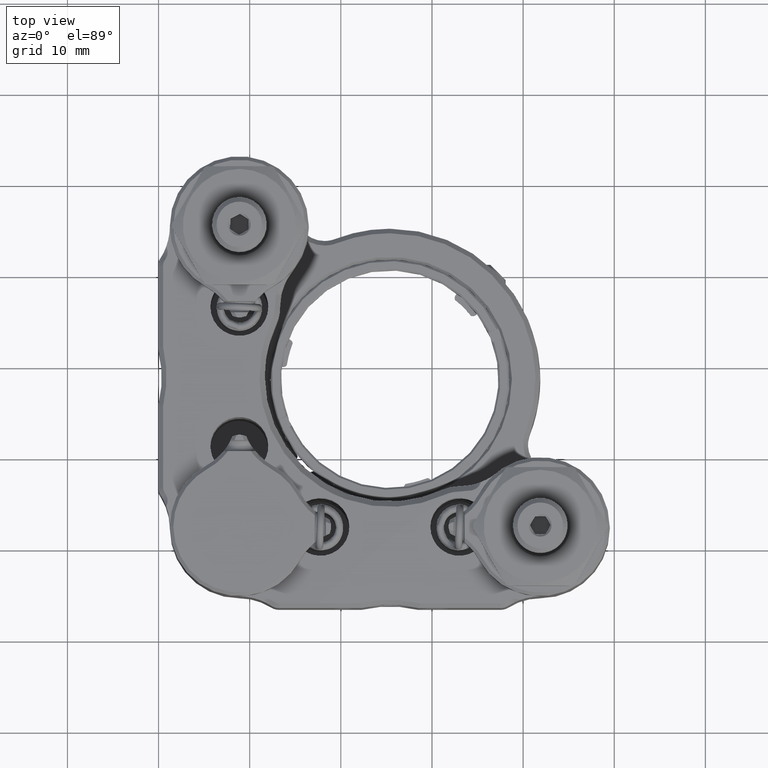
[diagram: clean part render]
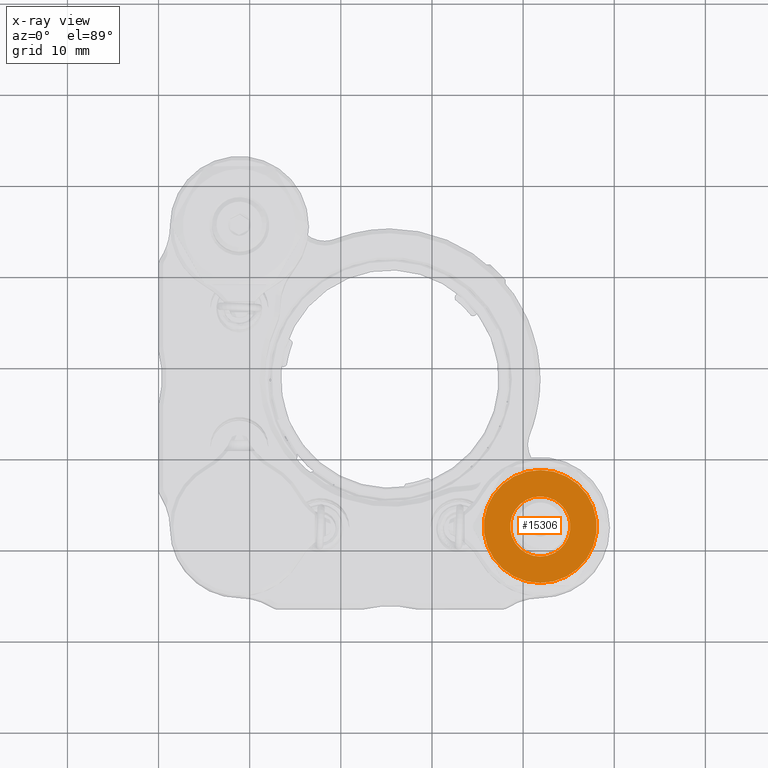
[diagram: x-ray — body ghosted, one internal face saturated and labeled with its STEP entity id]
A machine part, top view, then the same camera in x-ray: the body is ghosted and one INTERNAL B-rep face — a face not visible from any outside direction — is saturated and labeled: STEP entity #15306.
In plain terms, the highlighted planar face has unit normal (-0, -0, -1).
Its self-contained STEP definition (entity closure, byte-faithful):
#467 = CARTESIAN_POINT ( 'NONE',  ( -8.341592040314730408E-16, 0.9499999999999999556, -6.200000000000001066 ) ) ;
#1634 = CARTESIAN_POINT ( 'NONE',  ( 4.041334437186276850E-16, 0.9499999999999999556, -3.300000000000009148 ) ) ;
#2191 = ORIENTED_EDGE ( 'NONE', *, *, #13976, .T. ) ;
#2669 = DIRECTION ( 'NONE',  ( 0.000000000000000000, 0.000000000000000000, 1.000000000000000000 ) ) ;
#2833 = VERTEX_POINT ( 'NONE', #5124 ) ;
#2952 = FACE_BOUND ( 'NONE', #13764, .T. ) ;
#4060 = DIRECTION ( 'NONE',  ( 0.000000000000000000, 0.000000000000000000, 1.000000000000000000 ) ) ;
#5124 = CARTESIAN_POINT ( 'NONE',  ( 0.000000000000000000, 0.9499999999999999556, 3.300000000000009148 ) ) ;
#6877 = CARTESIAN_POINT ( 'NONE',  ( 0.000000000000000000, 0.9499999999999999556, 0.000000000000000000 ) ) ;
#6989 = DIRECTION ( 'NONE',  ( 0.000000000000000000, 1.000000000000000000, 0.000000000000000000 ) ) ;
#7479 = ORIENTED_EDGE ( 'NONE', *, *, #12569, .T. ) ;
#8382 = VERTEX_POINT ( 'NONE', #17262 ) ;
#8444 = DIRECTION ( 'NONE',  ( 0.000000000000000000, 0.000000000000000000, 1.000000000000000000 ) ) ;
#8627 = PLANE ( 'NONE',  #22459 ) ;
#8657 = CIRCLE ( 'NONE', #12627, 6.200000000000001066 ) ;
#8757 = CARTESIAN_POINT ( 'NONE',  ( 0.000000000000000000, 0.9499999999999999556, 0.000000000000000000 ) ) ;
#9614 = AXIS2_PLACEMENT_3D ( 'NONE', #11469, #23017, #4060 ) ;
#9744 = VERTEX_POINT ( 'NONE', #1634 ) ;
#9787 = EDGE_LOOP ( 'NONE', ( #20486, #7479 ) ) ;
#9956 = CIRCLE ( 'NONE', #22541, 6.200000000000001066 ) ;
#11325 = DIRECTION ( 'NONE',  ( 0.000000000000000000, 0.000000000000000000, 1.000000000000000000 ) ) ;
#11469 = CARTESIAN_POINT ( 'NONE',  ( 0.000000000000000000, 0.9499999999999999556, 0.000000000000000000 ) ) ;
#12161 = DIRECTION ( 'NONE',  ( 0.000000000000000000, 1.000000000000000000, 0.000000000000000000 ) ) ;
#12569 = EDGE_CURVE ( 'NONE', #24397, #8382, #9956, .T. ) ;
#12598 = DIRECTION ( 'NONE',  ( 0.000000000000000000, -0.000000000000000000, 1.000000000000000000 ) ) ;
#12627 = AXIS2_PLACEMENT_3D ( 'NONE', #14604, #12161, #8444 ) ;
#13415 = DIRECTION ( 'NONE',  ( 0.000000000000000000, -1.000000000000000000, -0.000000000000000000 ) ) ;
#13764 = EDGE_LOOP ( 'NONE', ( #14676, #2191 ) ) ;
#13976 = EDGE_CURVE ( 'NONE', #9744, #2833, #14324, .T. ) ;
#14324 = CIRCLE ( 'NONE', #9614, 3.300000000000009148 ) ;
#14604 = CARTESIAN_POINT ( 'NONE',  ( 0.000000000000000000, 0.9499999999999999556, 0.000000000000000000 ) ) ;
#14676 = ORIENTED_EDGE ( 'NONE', *, *, #20229, .T. ) ;
#15306 = ADVANCED_FACE ( 'NONE', ( #2952, #22176 ), #8627, .T. ) ;
#16443 = CIRCLE ( 'NONE', #21149, 3.300000000000009148 ) ;
#17262 = CARTESIAN_POINT ( 'NONE',  ( 0.000000000000000000, 0.9499999999999999556, 6.200000000000001066 ) ) ;
#17456 = CARTESIAN_POINT ( 'NONE',  ( 0.000000000000000000, 0.9499999999999999556, 0.000000000000000000 ) ) ;
#20229 = EDGE_CURVE ( 'NONE', #2833, #9744, #16443, .T. ) ;
#20486 = ORIENTED_EDGE ( 'NONE', *, *, #23585, .T. ) ;
#21149 = AXIS2_PLACEMENT_3D ( 'NONE', #17456, #13415, #11325 ) ;
#21929 = DIRECTION ( 'NONE',  ( -0.000000000000000000, 1.000000000000000000, 0.000000000000000000 ) ) ;
#22176 = FACE_OUTER_BOUND ( 'NONE', #9787, .T. ) ;
#22459 = AXIS2_PLACEMENT_3D ( 'NONE', #8757, #21929, #12598 ) ;
#22541 = AXIS2_PLACEMENT_3D ( 'NONE', #6877, #6989, #2669 ) ;
#23017 = DIRECTION ( 'NONE',  ( 0.000000000000000000, -1.000000000000000000, -0.000000000000000000 ) ) ;
#23585 = EDGE_CURVE ( 'NONE', #8382, #24397, #8657, .T. ) ;
#24397 = VERTEX_POINT ( 'NONE', #467 ) ;